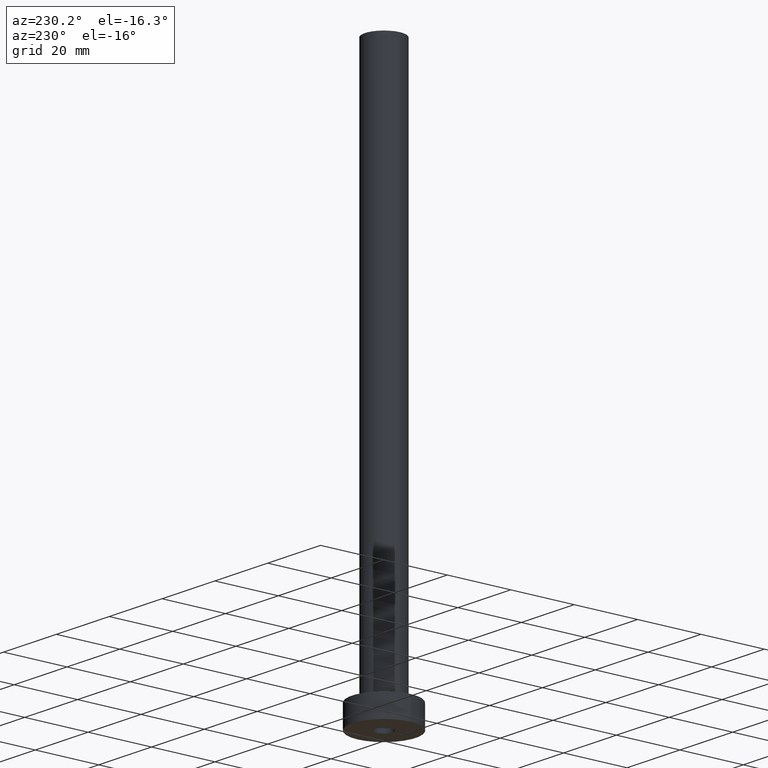
[diagram: clean part render]
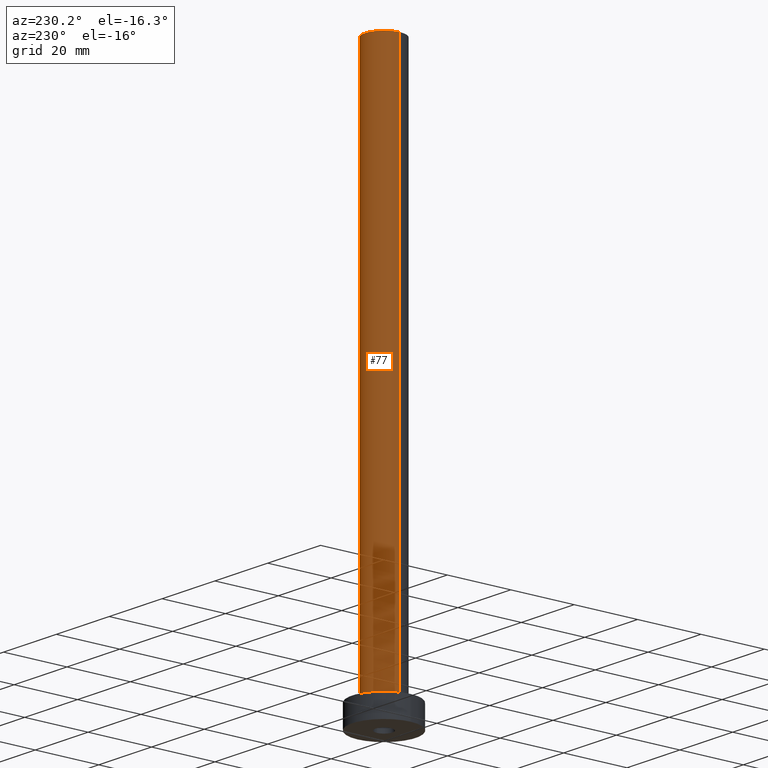
[diagram: same view with one face highlighted and labeled with its STEP entity id]
A machine part, auxiliary view. The second image highlights one B-rep face of the part: STEP entity #77.
In plain terms, the highlighted cylindrical surface (edge-blend (fillet) strip) has radius 6 mm, axis along (-0, -0, -1).
Its self-contained STEP definition (entity closure, byte-faithful):
#2 = LINE ( 'NONE', #429, #175 ) ;
#10 = CARTESIAN_POINT ( 'NONE',  ( 0.000000000000000000, 0.000000000000000000, 175.0000000000000284 ) ) ;
#48 = DIRECTION ( 'NONE',  ( -0.000000000000000000, -0.000000000000000000, -1.000000000000000000 ) ) ;
#53 = CARTESIAN_POINT ( 'NONE',  ( 6.000000000000000888, 7.347880794884119736E-16, 175.0000000000000284 ) ) ;
#57 = VERTEX_POINT ( 'NONE', #224 ) ;
#71 = EDGE_CURVE ( 'NONE', #90, #336, #2, .T. ) ;
#77 = ADVANCED_FACE ( 'NONE', ( #149 ), #230, .T. ) ;
#90 = VERTEX_POINT ( 'NONE', #185 ) ;
#93 = DIRECTION ( 'NONE',  ( -0.000000000000000000, -0.000000000000000000, -1.000000000000000000 ) ) ;
#102 = CARTESIAN_POINT ( 'NONE',  ( -6.000000000000000888, 0.000000000000000000, 7.500000000000007105 ) ) ;
#116 = EDGE_CURVE ( 'NONE', #160, #57, #128, .T. ) ;
#117 = CARTESIAN_POINT ( 'NONE',  ( 0.000000000000000000, 0.000000000000000000, 175.0000000000000284 ) ) ;
#128 = LINE ( 'NONE', #53, #137 ) ;
#137 = VECTOR ( 'NONE', #93, 1000.000000000000000 ) ;
#147 = DIRECTION ( 'NONE',  ( -0.000000000000000000, -0.000000000000000000, -1.000000000000000000 ) ) ;
#149 = FACE_OUTER_BOUND ( 'NONE', #225, .T. ) ;
#160 = VERTEX_POINT ( 'NONE', #197 ) ;
#164 = AXIS2_PLACEMENT_3D ( 'NONE', #117, #147, #255 ) ;
#175 = VECTOR ( 'NONE', #48, 1000.000000000000000 ) ;
#182 = AXIS2_PLACEMENT_3D ( 'NONE', #10, #269, #272 ) ;
#185 = CARTESIAN_POINT ( 'NONE',  ( -6.000000000000000888, 0.000000000000000000, 175.0000000000000284 ) ) ;
#190 = ORIENTED_EDGE ( 'NONE', *, *, #71, .F. ) ;
#192 = ORIENTED_EDGE ( 'NONE', *, *, #116, .T. ) ;
#197 = CARTESIAN_POINT ( 'NONE',  ( 6.000000000000000888, 7.347880794884119736E-16, 175.0000000000000284 ) ) ;
#212 = EDGE_CURVE ( 'NONE', #160, #90, #220, .T. ) ;
#220 = CIRCLE ( 'NONE', #182, 6.000000000000000888 ) ;
#224 = CARTESIAN_POINT ( 'NONE',  ( 6.000000000000000888, 7.347880794884119736E-16, 7.500000000000007105 ) ) ;
#225 = EDGE_LOOP ( 'NONE', ( #417, #192, #231, #190 ) ) ;
#230 = CYLINDRICAL_SURFACE ( 'NONE', #164, 6.000000000000000888 ) ;
#231 = ORIENTED_EDGE ( 'NONE', *, *, #418, .T. ) ;
#251 = DIRECTION ( 'NONE',  ( 0.000000000000000000, 0.000000000000000000, 1.000000000000000000 ) ) ;
#255 = DIRECTION ( 'NONE',  ( -1.000000000000000000, 0.000000000000000000, 0.000000000000000000 ) ) ;
#269 = DIRECTION ( 'NONE',  ( 0.000000000000000000, 0.000000000000000000, 1.000000000000000000 ) ) ;
#272 = DIRECTION ( 'NONE',  ( 1.000000000000000000, 0.000000000000000000, 0.000000000000000000 ) ) ;
#309 = CARTESIAN_POINT ( 'NONE',  ( 0.000000000000000000, 0.000000000000000000, 7.500000000000007105 ) ) ;
#328 = CIRCLE ( 'NONE', #350, 6.000000000000000888 ) ;
#336 = VERTEX_POINT ( 'NONE', #102 ) ;
#350 = AXIS2_PLACEMENT_3D ( 'NONE', #309, #251, #414 ) ;
#414 = DIRECTION ( 'NONE',  ( 1.000000000000000000, 0.000000000000000000, 0.000000000000000000 ) ) ;
#417 = ORIENTED_EDGE ( 'NONE', *, *, #212, .F. ) ;
#418 = EDGE_CURVE ( 'NONE', #57, #336, #328, .T. ) ;
#429 = CARTESIAN_POINT ( 'NONE',  ( -6.000000000000000888, 0.000000000000000000, 175.0000000000000284 ) ) ;